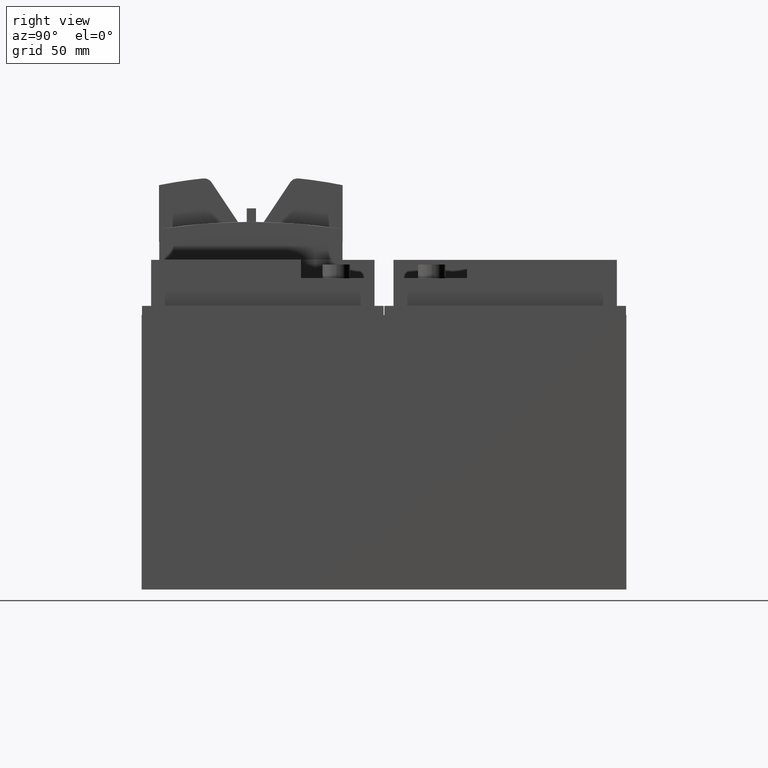
[diagram: clean part render]
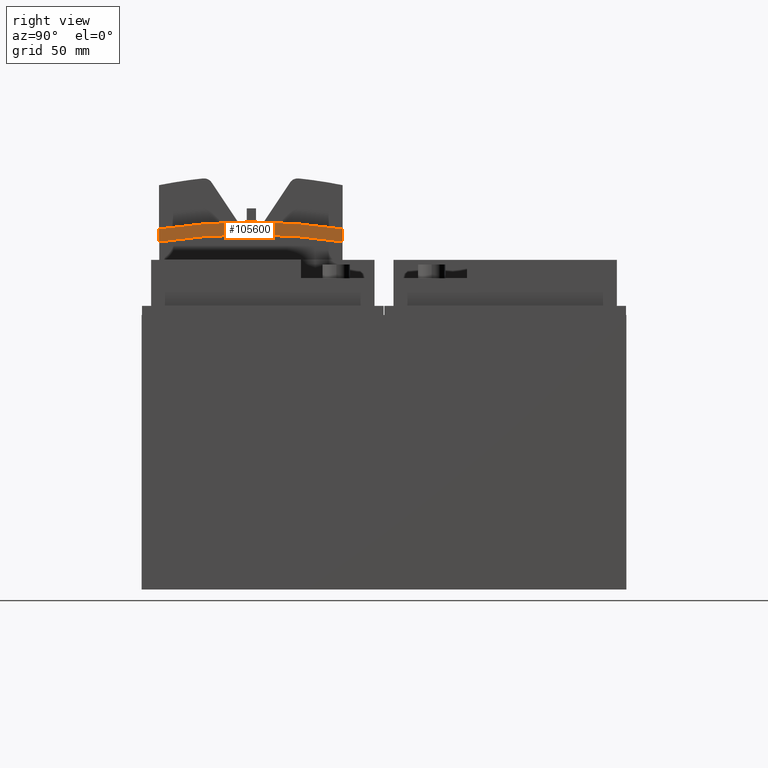
[diagram: same view with one face highlighted and labeled with its STEP entity id]
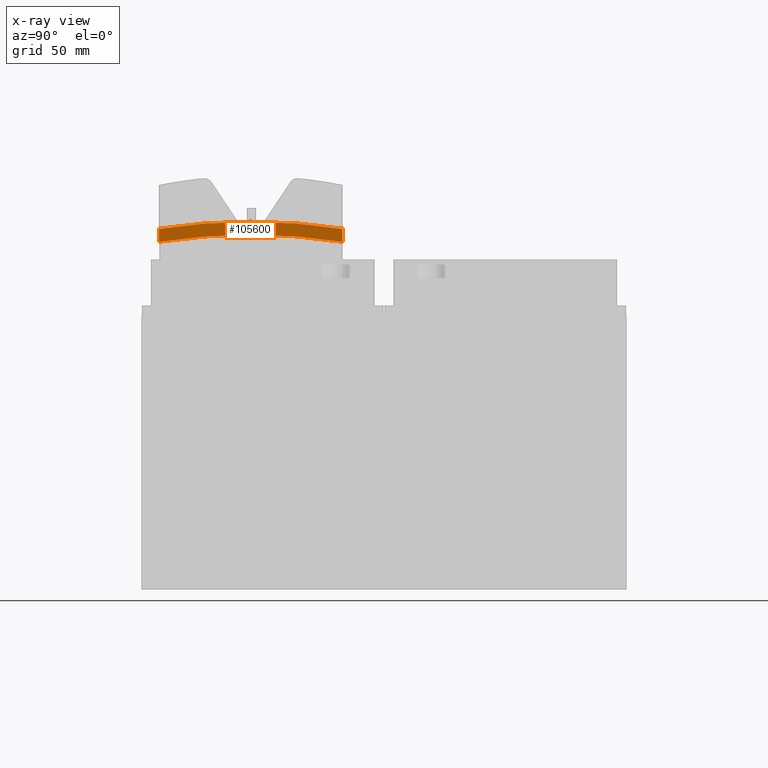
[diagram: x-ray of the same camera — body ghosted, the highlighted face saturated]
A machine part, right view. The second image highlights one B-rep face of the part: STEP entity #105600.
The next image is the same camera in x-ray: the body ghosted, the highlighted face saturated — about 0% of this face is hidden behind the body in this view.
In plain terms, the highlighted planar face has unit normal (1, 0, 0).
Its self-contained STEP definition (entity closure, byte-faithful):
#13710=CARTESIAN_POINT('',(138.5,314.055230726395,-134.300000000001));
#13720=DIRECTION('',(1.,0.,0.));
#13730=DIRECTION('',(0.,-1.,0.));
#13740=AXIS2_PLACEMENT_3D('',#13710,#13720,#13730);
#13750=CIRCLE('',#13740,325.000000000001);
#13760=CARTESIAN_POINT('',(138.5,364.05,186.83162884599));
#13770=VERTEX_POINT('',#13760);
#13780=CARTESIAN_POINT('',(138.5,264.060461452794,186.831628845991));
#13790=VERTEX_POINT('',#13780);
#13800=EDGE_CURVE('',#13770,#13790,#13750,.T.);
#14490=CARTESIAN_POINT('',(138.5,364.05,48.5299999999997));
#14500=DIRECTION('',(0.,0.,1.));
#14510=VECTOR('',#14500,1.);
#14520=LINE('',#14490,#14510);
#14530=CARTESIAN_POINT('',(138.5,364.05,193.830814466628));
#14540=VERTEX_POINT('',#14530);
#14550=EDGE_CURVE('',#13770,#14540,#14520,.T.);
#93650=CARTESIAN_POINT('',(138.5,314.05,-127.3));
#93660=DIRECTION('',(1.,0.,0.));
#93670=DIRECTION('',(0.,-1.,0.));
#93680=AXIS2_PLACEMENT_3D('',#93650,#93660,#93670);
#93690=CIRCLE('',#93680,325.);
#93700=CARTESIAN_POINT('',(138.5,264.05,193.830814466628));
#93710=VERTEX_POINT('',#93700);
#93720=EDGE_CURVE('',#14540,#93710,#93690,.T.);
#105360=CARTESIAN_POINT('',(138.5,374.05,203.094221414469));
#105370=DIRECTION('',(1.,0.,0.));
#105380=DIRECTION('',(0.,-1.,0.));
#105390=AXIS2_PLACEMENT_3D('',#105360,#105370,#105380);
#105400=PLANE('',#105390);
#105410=ORIENTED_EDGE('',*,*,#13800,.F.);
#105420=CARTESIAN_POINT('',(138.5,302.604099105479,186.831628845991));
#105430=DIRECTION('',(0.,-1.,0.));
#105440=VECTOR('',#105430,1.);
#105450=LINE('',#105420,#105440);
#105460=CARTESIAN_POINT('',(138.5,264.05,186.831628845991));
#105470=VERTEX_POINT('',#105460);
#105480=EDGE_CURVE('',#13790,#105470,#105450,.T.);
#105490=ORIENTED_EDGE('',*,*,#105480,.F.);
#105500=CARTESIAN_POINT('',(138.5,264.05,48.5299999999997));
#105510=DIRECTION('',(0.,0.,-1.));
#105520=VECTOR('',#105510,1.);
#105530=LINE('',#105500,#105520);
#105540=EDGE_CURVE('',#93710,#105470,#105530,.T.);
#105550=ORIENTED_EDGE('',*,*,#105540,.T.);
#105560=ORIENTED_EDGE('',*,*,#93720,.T.);
#105570=ORIENTED_EDGE('',*,*,#14550,.T.);
#105580=EDGE_LOOP('',(#105570,#105560,#105550,#105490,#105410));
#105590=FACE_OUTER_BOUND('',#105580,.T.);
#105600=ADVANCED_FACE('',(#105590),#105400,.T.);